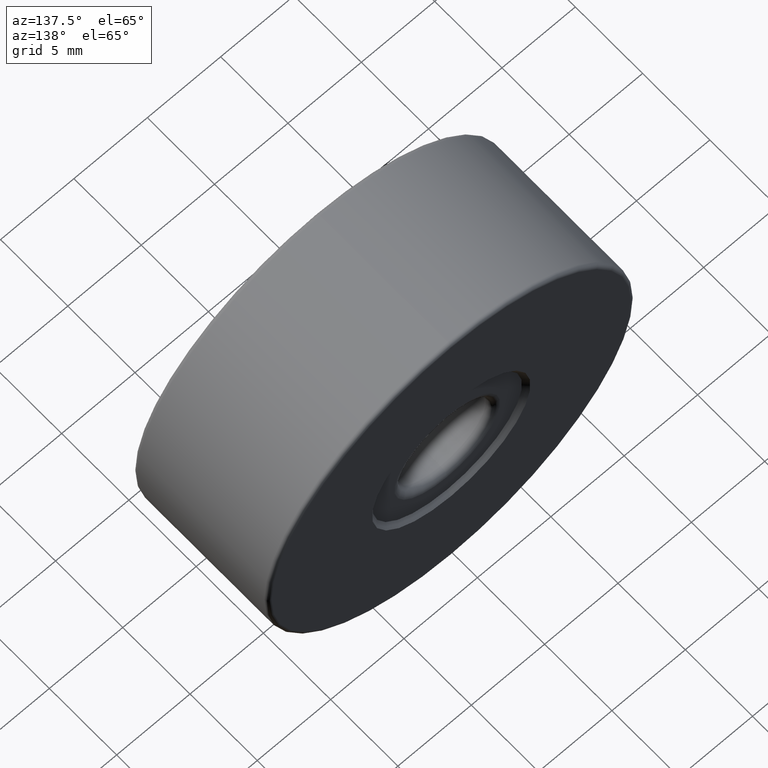
[diagram: clean part render]
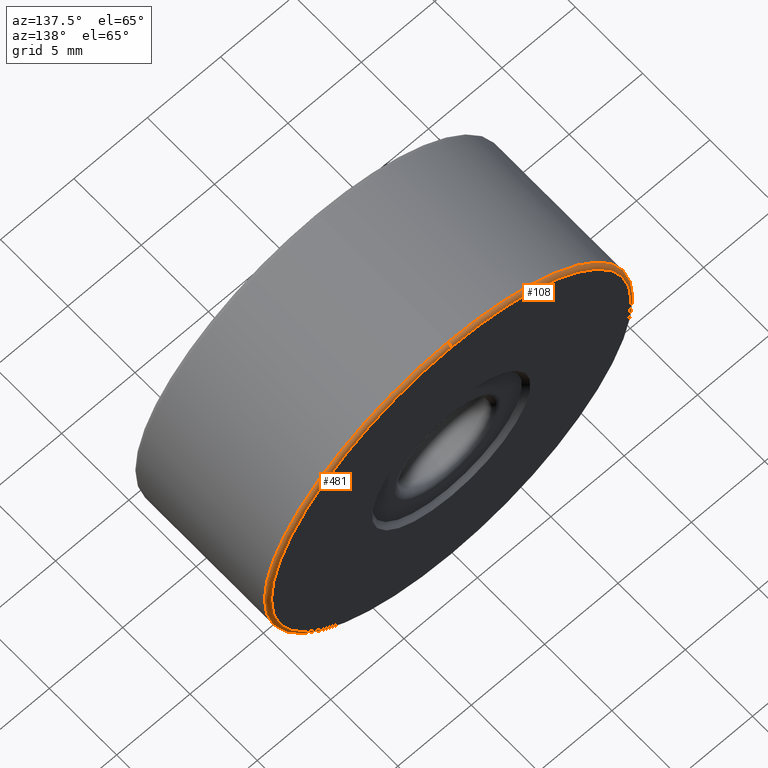
[diagram: same view with one multi-face feature highlighted, each face labeled with its STEP entity id]
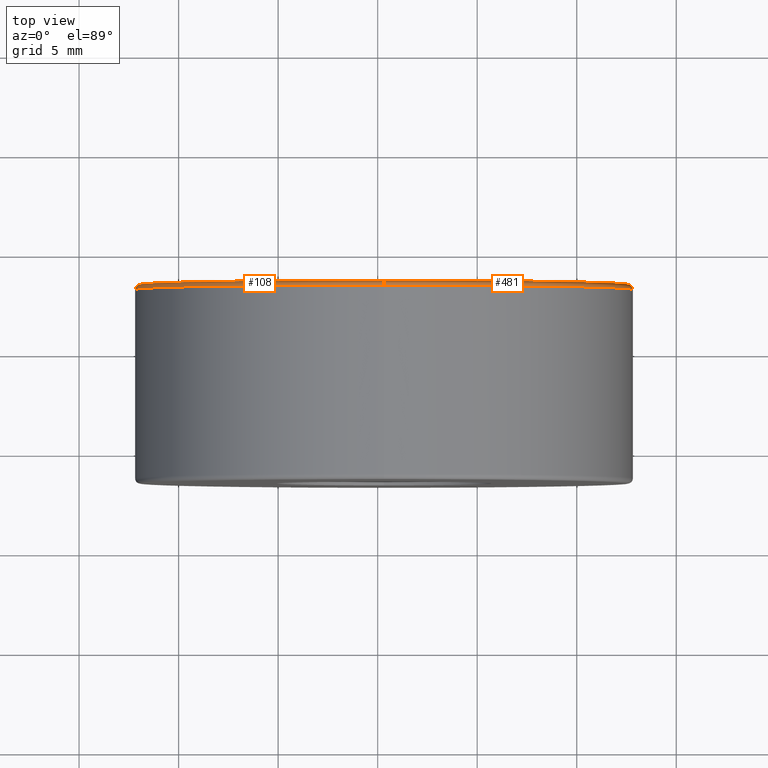
[diagram: same view with one multi-face feature highlighted, each face labeled with its STEP entity id]
A machine part, auxiliary view. The highlighted faces form ONE feature: a constant-radius fillet chain: 2 tangent blend faces with common blend radius 0.25 mm. The faces share edges in the B-rep.
A second angle (top view) of the same feature is appended — it is thin or edge-on in the first view.
Their STEP definitions:
[1] entity #108 (Torus):
#7 = EDGE_CURVE ( 'NONE', #604, #86, #145, .T. ) ;
#12 = CARTESIAN_POINT ( 'NONE',  ( -4.682026255059962949, 3.405024023001725020, 12.75000000000000178 ) ) ;
#57 = CARTESIAN_POINT ( 'NONE',  ( -4.682026255059962949, 3.155024023001725020, 12.50000000000000000 ) ) ;
#63 = DIRECTION ( 'NONE',  ( 0.0000000000000000000, 0.0000000000000000000, 1.000000000000000000 ) ) ;
#68 = ORIENTED_EDGE ( 'NONE', *, *, #154, .F. ) ;
#74 = CARTESIAN_POINT ( 'NONE',  ( -4.682026255059964726, 3.405024023001725020, 25.00000000000000000 ) ) ;
#83 = DIRECTION ( 'NONE',  ( 0.0000000000000000000, 0.0000000000000000000, 1.000000000000000000 ) ) ;
#85 = CIRCLE ( 'NONE', #475, 0.2500000000000002220 ) ;
#86 = VERTEX_POINT ( 'NONE', #582 ) ;
#108 = ADVANCED_FACE ( 'NONE', ( #151 ), #284, .T. ) ;
#117 = CIRCLE ( 'NONE', #396, 12.50000000000000355 ) ;
#142 = DIRECTION ( 'NONE',  ( 0.0000000000000000000, 0.0000000000000000000, 1.000000000000000000 ) ) ;
#145 = CIRCLE ( 'NONE', #354, 12.25000000000000355 ) ;
#151 = FACE_OUTER_BOUND ( 'NONE', #362, .T. ) ;
#153 = DIRECTION ( 'NONE',  ( 0.0000000000000000000, 1.000000000000000000, 0.0000000000000000000 ) ) ;
#154 = EDGE_CURVE ( 'NONE', #423, #428, #117, .T. ) ;
#161 = DIRECTION ( 'NONE',  ( 1.000000000000000000, -0.0000000000000000000, 1.224646799147353207E-16 ) ) ;
#166 = DIRECTION ( 'NONE',  ( 0.0000000000000000000, 0.0000000000000000000, -1.000000000000000000 ) ) ;
#222 = EDGE_CURVE ( 'NONE', #423, #86, #512, .T. ) ;
#265 = DIRECTION ( 'NONE',  ( 0.0000000000000000000, 1.000000000000000000, 0.0000000000000000000 ) ) ;
#284 = TOROIDAL_SURFACE ( 'NONE', #343, 12.25000000000000000, 0.2500000000000000000 ) ;
#318 = ORIENTED_EDGE ( 'NONE', *, *, #7, .F. ) ;
#319 = DIRECTION ( 'NONE',  ( -0.0000000000000000000, -1.000000000000000000, -0.0000000000000000000 ) ) ;
#335 = DIRECTION ( 'NONE',  ( 0.0000000000000000000, 0.0000000000000000000, 1.000000000000000000 ) ) ;
#340 = CARTESIAN_POINT ( 'NONE',  ( -4.682026255059964726, 3.155024023001725020, 25.00000000000000000 ) ) ;
#343 = AXIS2_PLACEMENT_3D ( 'NONE', #340, #153, #63 ) ;
#354 = AXIS2_PLACEMENT_3D ( 'NONE', #74, #265, #142 ) ;
#362 = EDGE_LOOP ( 'NONE', ( #575, #68, #556, #318 ) ) ;
#391 = CARTESIAN_POINT ( 'NONE',  ( -4.682026255059964726, 3.155024023001725020, 37.50000000000000711 ) ) ;
#396 = AXIS2_PLACEMENT_3D ( 'NONE', #414, #319, #83 ) ;
#414 = CARTESIAN_POINT ( 'NONE',  ( -4.682026255059964726, 3.155024023001725020, 25.00000000000000000 ) ) ;
#423 = VERTEX_POINT ( 'NONE', #391 ) ;
#428 = VERTEX_POINT ( 'NONE', #57 ) ;
#430 = CARTESIAN_POINT ( 'NONE',  ( -4.682026255059964726, 3.155024023001725020, 37.25000000000000711 ) ) ;
#451 = EDGE_CURVE ( 'NONE', #428, #604, #85, .T. ) ;
#475 = AXIS2_PLACEMENT_3D ( 'NONE', #590, #161, #166 ) ;
#499 = AXIS2_PLACEMENT_3D ( 'NONE', #430, #581, #335 ) ;
#512 = CIRCLE ( 'NONE', #499, 0.2500000000000002220 ) ;
#556 = ORIENTED_EDGE ( 'NONE', *, *, #222, .T. ) ;
#575 = ORIENTED_EDGE ( 'NONE', *, *, #451, .F. ) ;
#581 = DIRECTION ( 'NONE',  ( -1.000000000000000000, 0.0000000000000000000, 0.0000000000000000000 ) ) ;
#582 = CARTESIAN_POINT ( 'NONE',  ( -4.682026255059964726, 3.405024023001725020, 37.25000000000000711 ) ) ;
#590 = CARTESIAN_POINT ( 'NONE',  ( -4.682026255059962949, 3.155024023001725020, 12.75000000000000178 ) ) ;
#604 = VERTEX_POINT ( 'NONE', #12 ) ;
[2] entity #481 (Torus):
#11 = DIRECTION ( 'NONE',  ( 0.0000000000000000000, 1.000000000000000000, 0.0000000000000000000 ) ) ;
#12 = CARTESIAN_POINT ( 'NONE',  ( -4.682026255059962949, 3.405024023001725020, 12.75000000000000178 ) ) ;
#43 = ORIENTED_EDGE ( 'NONE', *, *, #99, .F. ) ;
#57 = CARTESIAN_POINT ( 'NONE',  ( -4.682026255059962949, 3.155024023001725020, 12.50000000000000000 ) ) ;
#73 = DIRECTION ( 'NONE',  ( -0.0000000000000000000, -1.000000000000000000, -0.0000000000000000000 ) ) ;
#85 = CIRCLE ( 'NONE', #475, 0.2500000000000002220 ) ;
#86 = VERTEX_POINT ( 'NONE', #582 ) ;
#99 = EDGE_CURVE ( 'NONE', #86, #604, #311, .T. ) ;
#107 = DIRECTION ( 'NONE',  ( 0.0000000000000000000, 0.0000000000000000000, 1.000000000000000000 ) ) ;
#161 = DIRECTION ( 'NONE',  ( 1.000000000000000000, -0.0000000000000000000, 1.224646799147353207E-16 ) ) ;
#163 = AXIS2_PLACEMENT_3D ( 'NONE', #295, #11, #107 ) ;
#166 = DIRECTION ( 'NONE',  ( 0.0000000000000000000, 0.0000000000000000000, -1.000000000000000000 ) ) ;
#210 = CARTESIAN_POINT ( 'NONE',  ( -4.682026255059964726, 3.155024023001725020, 25.00000000000000000 ) ) ;
#221 = ORIENTED_EDGE ( 'NONE', *, *, #451, .T. ) ;
#222 = EDGE_CURVE ( 'NONE', #423, #86, #512, .T. ) ;
#245 = TOROIDAL_SURFACE ( 'NONE', #163, 12.25000000000000000, 0.2500000000000000000 ) ;
#250 = FACE_OUTER_BOUND ( 'NONE', #542, .T. ) ;
#276 = EDGE_CURVE ( 'NONE', #428, #423, #304, .T. ) ;
#295 = CARTESIAN_POINT ( 'NONE',  ( -4.682026255059964726, 3.155024023001725020, 25.00000000000000000 ) ) ;
#304 = CIRCLE ( 'NONE', #465, 12.50000000000000355 ) ;
#307 = DIRECTION ( 'NONE',  ( 0.0000000000000000000, 0.0000000000000000000, 1.000000000000000000 ) ) ;
#311 = CIRCLE ( 'NONE', #609, 12.25000000000000355 ) ;
#321 = ORIENTED_EDGE ( 'NONE', *, *, #276, .F. ) ;
#334 = CARTESIAN_POINT ( 'NONE',  ( -4.682026255059964726, 3.405024023001725020, 25.00000000000000000 ) ) ;
#335 = DIRECTION ( 'NONE',  ( 0.0000000000000000000, 0.0000000000000000000, 1.000000000000000000 ) ) ;
#391 = CARTESIAN_POINT ( 'NONE',  ( -4.682026255059964726, 3.155024023001725020, 37.50000000000000711 ) ) ;
#423 = VERTEX_POINT ( 'NONE', #391 ) ;
#428 = VERTEX_POINT ( 'NONE', #57 ) ;
#430 = CARTESIAN_POINT ( 'NONE',  ( -4.682026255059964726, 3.155024023001725020, 37.25000000000000711 ) ) ;
#433 = DIRECTION ( 'NONE',  ( 0.0000000000000000000, 1.000000000000000000, 0.0000000000000000000 ) ) ;
#451 = EDGE_CURVE ( 'NONE', #428, #604, #85, .T. ) ;
#465 = AXIS2_PLACEMENT_3D ( 'NONE', #210, #73, #307 ) ;
#475 = AXIS2_PLACEMENT_3D ( 'NONE', #590, #161, #166 ) ;
#481 = ADVANCED_FACE ( 'NONE', ( #250 ), #245, .T. ) ;
#499 = AXIS2_PLACEMENT_3D ( 'NONE', #430, #581, #335 ) ;
#512 = CIRCLE ( 'NONE', #499, 0.2500000000000002220 ) ;
#540 = DIRECTION ( 'NONE',  ( 0.0000000000000000000, 0.0000000000000000000, 1.000000000000000000 ) ) ;
#542 = EDGE_LOOP ( 'NONE', ( #321, #221, #43, #568 ) ) ;
#568 = ORIENTED_EDGE ( 'NONE', *, *, #222, .F. ) ;
#581 = DIRECTION ( 'NONE',  ( -1.000000000000000000, 0.0000000000000000000, 0.0000000000000000000 ) ) ;
#582 = CARTESIAN_POINT ( 'NONE',  ( -4.682026255059964726, 3.405024023001725020, 37.25000000000000711 ) ) ;
#590 = CARTESIAN_POINT ( 'NONE',  ( -4.682026255059962949, 3.155024023001725020, 12.75000000000000178 ) ) ;
#604 = VERTEX_POINT ( 'NONE', #12 ) ;
#609 = AXIS2_PLACEMENT_3D ( 'NONE', #334, #433, #540 ) ;